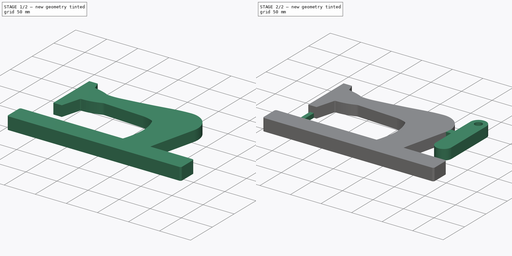
[diagram: build sequence overview — one tinted view per stage of 2, left to right]
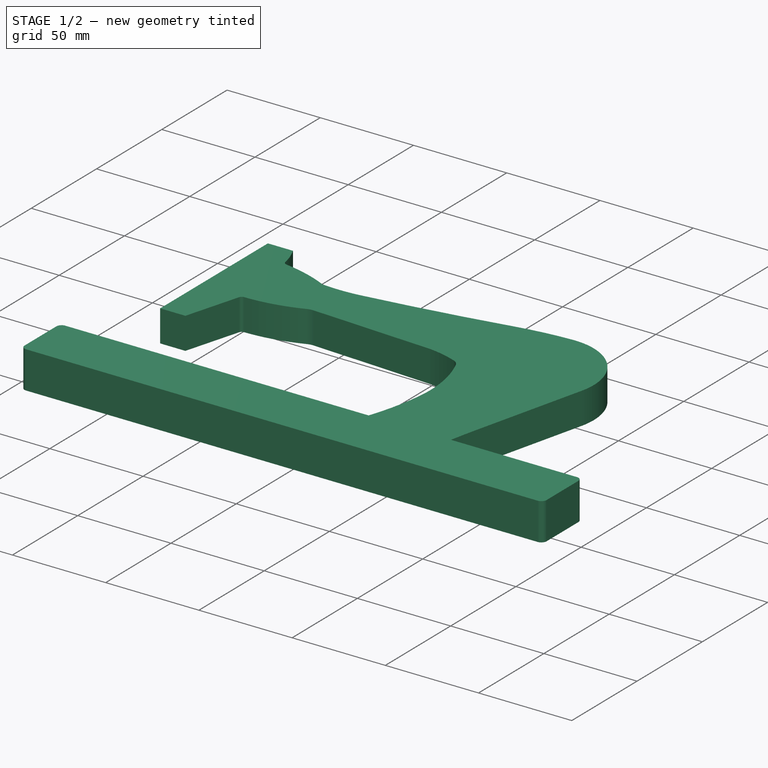
[diagram: stage 1 of 2 — iso view after this stage's code; geometry added in this stage tinted green]
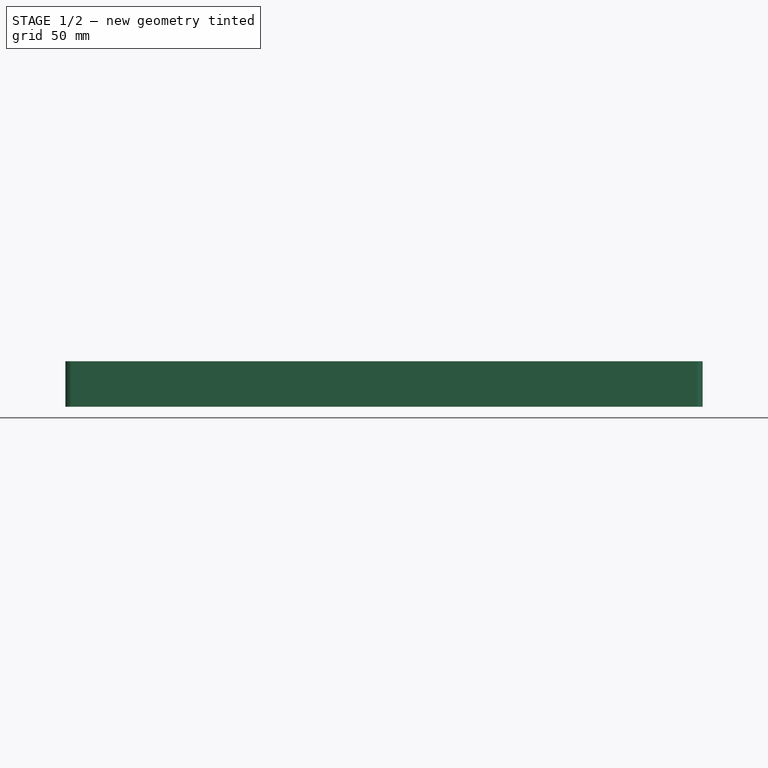
[diagram: stage 1 of 2 — front view after this stage's code; geometry added in this stage tinted green]
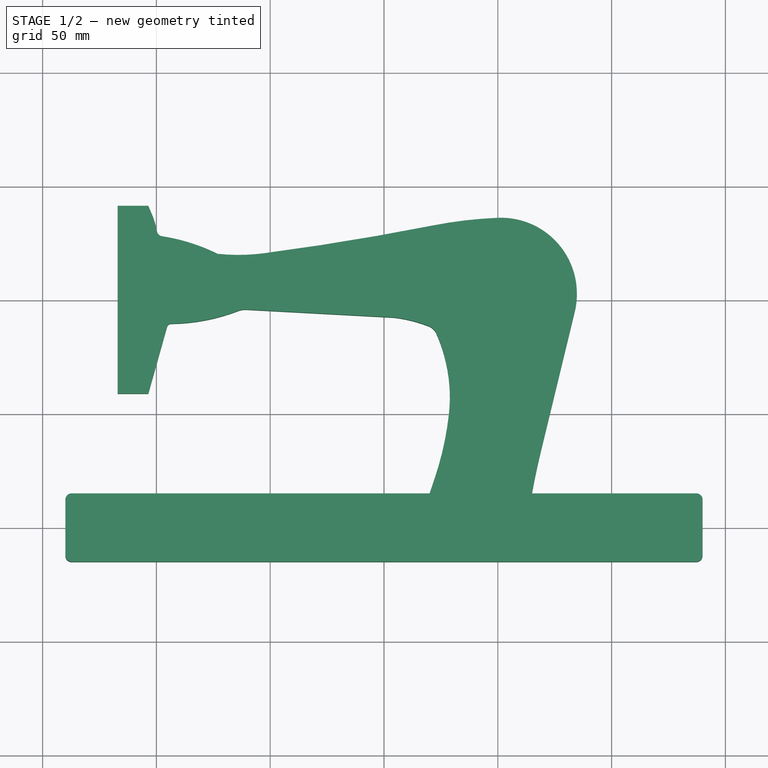
[diagram: stage 1 of 2 — top view after this stage's code; geometry added in this stage tinted green]
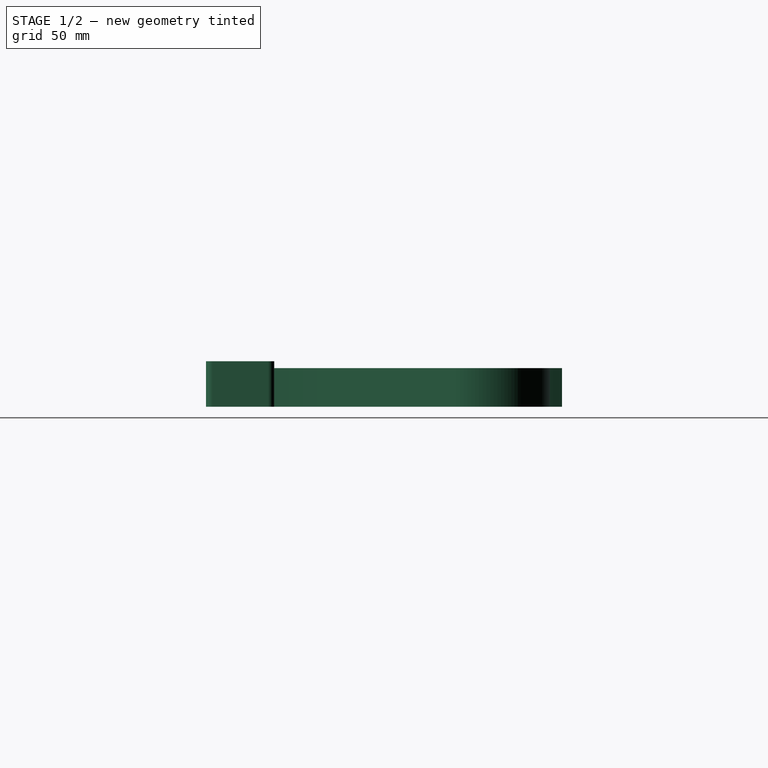
[diagram: stage 1 of 2 — right view after this stage's code; geometry added in this stage tinted green]
FCSTD DOCUMENT  (FreeCAD 0.19R24291 (Git))
Label: Nähmaschine_0v1
License: All rights reserved
LicenseURL: http://en.wikipedia.org/wiki/All_rights_reserved
objects: Sketcher::SketchObject×4, PartDesign::Pad×4, PartDesign::Body×1
note: 13 computed .brp shape members not serialized (recipe doc carries the construction recipe); baked Part::Feature solids carry a one-line shape summary decoded from their .brp

FEATURE [Sketcher::SketchObject] Sketch  label="Basis"
  FullyConstrained = true
  MapMode = 5
  Support = -> [XY_Plane]
  sketch-geometry (12):
    g0: LineSegment StartX=-137.2 StartY=15 StartZ=0 EndX=137.2 EndY=15 EndZ=0
    g1: LineSegment StartX=140 StartY=12.2 StartZ=0 EndX=140 EndY=-12.2 EndZ=0
    g2: LineSegment StartX=137.2 StartY=-15 StartZ=0 EndX=-137.2 EndY=-15 EndZ=0
    g3: LineSegment StartX=-140 StartY=-12.2 StartZ=0 EndX=-140 EndY=12.2 EndZ=0
    g4: ArcOfCircle CenterX=-137.2 CenterY=12.2 CenterZ=0 NormalX=0 NormalY=0 NormalZ=1 AngleXU=0 Radius=2.8 StartAngle=1.5708 EndAngle=3.14159
    g5: GeomPoint X=-140 Y=15 Z=0
    g6: ArcOfCircle CenterX=-137.2 CenterY=-12.2 CenterZ=0 NormalX=0 NormalY=0 NormalZ=1 AngleXU=0 Radius=2.8 StartAngle=3.14159 EndAngle=4.71239
    g7: GeomPoint X=-140 Y=-15 Z=0
    g8: ArcOfCircle CenterX=137.2 CenterY=-12.2 CenterZ=0 NormalX=0 NormalY=0 NormalZ=1 AngleXU=0 Radius=2.8 StartAngle=4.71239 EndAngle=6.28319
    g9: GeomPoint X=140 Y=-15 Z=0
    g10: ArcOfCircle CenterX=137.2 CenterY=12.2 CenterZ=0 NormalX=0 NormalY=0 NormalZ=1 AngleXU=0 Radius=2.8 StartAngle=0 EndAngle=1.5708
    g11: GeomPoint X=140 Y=15 Z=0
  constraints (27):
    c: Horizontal(g2)
    c: Vertical(g1)
    c: Vertical(g3)
    c: Distance(g7,g5) = 30
    c: Distance(g-1,g3) = 140
    c: Distance(g-1,g2) = 15
    c: PointOnObject(g5,g0)
    c: PointOnObject(g5,g3)
    c: Tangent(g0,g4) = 1.5708
    c: Tangent(g3,g4) = 1.5708
    c: Radius(g4) = 2.8
    c: PointOnObject(g7,g2)
    c: PointOnObject(g7,g3)
    c: Tangent(g2,g6) = 1.5708
    c: Tangent(g3,g6) = 1.5708
    c: PointOnObject(g9,g1)
    c: PointOnObject(g9,g2)
    c: Tangent(g1,g8) = 1.5708
    c: Tangent(g2,g8) = 1.5708
    c: PointOnObject(g11,g0)
    c: PointOnObject(g11,g1)
    c: Tangent(g0,g10) = 1.5708
    c: Tangent(g1,g10) = 1.5708
    c: Equal(g6,g8)
    c: Equal(g8,g10)
    c: Equal(g10,g4)
    c: Symmetric(g0,g0,g-2)
FEATURE [PartDesign::Pad] Pad  label="Basis_pad"
  Direction = (1,1,1)
  Length = 20
  Length2 = 100
  Profile = -> Sketch
  Refine = true
  Type = 0
FEATURE [Sketcher::SketchObject] Sketch001  label="Nähmaschine"
  FullyConstrained = true
  MapMode = 5
  Support = -> [XY_Plane]
  sketch-geometry (24):
    g0: LineSegment StartX=20 StartY=15 StartZ=0 EndX=22.1 EndY=21.1514 EndZ=0
    g1: ArcOfCircle CenterX=-105.66 CenterY=64.7668 CenterZ=0 NormalX=0 NormalY=0 NormalZ=1 AngleXU=0 Radius=135 StartAngle=5.95421 EndAngle=6.17204
    g2: ArcOfCircle CenterX=-39.8688 CenterY=57.4244 CenterZ=0 NormalX=0 NormalY=0 NormalZ=1 AngleXU=0 Radius=68.8 StartAngle=6.17204 EndAngle=6.70146
    g3: ArcOfCircle CenterX=17.4625 CenterY=82.9085 CenterZ=0 NormalX=0 NormalY=0 NormalZ=1 AngleXU=0 Radius=6.06 StartAngle=0.418276 EndAngle=1.19865
    g4: ArcOfCircle CenterX=-2.95074 CenterY=30.6113 CenterZ=0 NormalX=0 NormalY=0 NormalZ=1 AngleXU=0 Radius=62.2 StartAngle=1.19865 EndAngle=1.44996
    g5: LineSegment StartX=4.54717 StartY=92.3577 StartZ=0 EndX=-60.3589 EndY=95.85 EndZ=0
    g6: LineSegment StartX=-95.3071 StartY=88.2712 StartZ=0 EndX=-103.55 EndY=58.933 EndZ=0
    g7: LineSegment StartX=-103.55 StartY=58.933 StartZ=0 EndX=-117.05 EndY=58.933 EndZ=0
    g8: LineSegment StartX=-117.05 StartY=58.933 StartZ=0 EndX=-117.05 EndY=141.429 EndZ=0
    g9: LineSegment StartX=-117.05 StartY=141.429 StartZ=0 EndX=-103.55 EndY=141.429 EndZ=0
    g10: ArcOfCircle CenterX=-63.9702 CenterY=207.129 CenterZ=0 NormalX=0 NormalY=0 NormalZ=1 AngleXU=0 Radius=87.3 StartAngle=4.60826 EndAngle=4.84423
    g11: ArcOfCircle CenterX=-209.455 CenterY=1304.22 CenterZ=0 NormalX=0 NormalY=0 NormalZ=1 AngleXU=0 Radius=1194 StartAngle=4.84423 EndAngle=4.90697
    g12: ArcOfCircle CenterX=57.4695 CenterY=-50.2141 CenterZ=0 NormalX=0 NormalY=0 NormalZ=1 AngleXU=0 Radius=186.49 StartAngle=1.61036 EndAngle=1.76538
    g13: ArcOfCircle CenterX=51.4114 CenterY=102.826 CenterZ=0 NormalX=0 NormalY=0 NormalZ=1 AngleXU=0 Radius=33.33 StartAngle=6.04534 EndAngle=7.89355
    g14: LineSegment StartX=83.8031 StartY=94.9733 StartZ=0 EndX=68.9493 EndY=33.703 EndZ=0
    g15: ArcOfCircle CenterX=381.301 CenterY=-42.0207 CenterZ=0 NormalX=0 NormalY=0 NormalZ=1 AngleXU=0 Radius=321.399 StartAngle=2.90375 EndAngle=2.96323
    g16: LineSegment StartX=65 StartY=15 StartZ=0 EndX=20 EndY=15 EndZ=0
    g17: ArcOfCircle CenterX=-60.8489 CenterY=86.7432 CenterZ=0 NormalX=0 NormalY=0 NormalZ=1 AngleXU=0 Radius=9.12 StartAngle=1.51704 EndAngle=1.93678
    g18: ArcOfCircle CenterX=-94.5318 CenterY=174.63 CenterZ=0 NormalX=0 NormalY=0 NormalZ=1 AngleXU=0 Radius=85 StartAngle=4.72358 EndAngle=5.07838
    g19: ArcOfCircle CenterX=-93.5607 CenterY=87.8351 CenterZ=0 NormalX=0 NormalY=0 NormalZ=1 AngleXU=0 Radius=1.8 StartAngle=1.58198 EndAngle=2.89691
    g20: LineSegment StartX=-103.55 StartY=141.429 StartZ=0 EndX=-101.963 EndY=137.695 EndZ=0
    g21: ArcOfCircle CenterX=-134.036 CenterY=124.064 CenterZ=0 NormalX=0 NormalY=0 NormalZ=1 AngleXU=0 Radius=34.85 StartAngle=0.177023 EndAngle=0.401887
    g22: ArcOfCircle CenterX=-97.1223 CenterY=130.667 CenterZ=0 NormalX=0 NormalY=0 NormalZ=1 AngleXU=0 Radius=2.65 StartAngle=3.31862 EndAngle=4.55885
    g23: ArcOfCircle CenterX=-110.42 CenterY=44.7401 CenterZ=0 NormalX=0 NormalY=0 NormalZ=1 AngleXU=0 Radius=84.3 StartAngle=1.11144 EndAngle=1.41726
  constraints (72):
    c: DistanceY(g-1,g0) = 15
    c: DistanceX(g-1,g0) = 20
    c: Tangent(g0,g1) = -1.5708
    c: Tangent(g1,g2) = -1.5708
    c: Tangent(g2,g3) = -1.5708
    c: Tangent(g3,g4) = -1.5708
    c: Coincident(g4,g5)
    c: Coincident(g6,g7)
    c: Horizontal(g7)
    c: Coincident(g7,g8)
    c: Vertical(g8)
    c: Coincident(g8,g9)
    c: Horizontal(g9)
    c: Tangent(g10,g11) = -1.5708
    c: Tangent(g11,g12) = 1.5708
    c: Tangent(g12,g13) = -1.5708
    c: Tangent(g13,g14) = 1.5708
    c: Tangent(g14,g15) = -1.5708
    c: Coincident(g16,g15)
    c: Coincident(g16,g0)
    c: DistanceY(g-1,g15) = 15
    c: DistanceX(g0,g15) = 45
    c: Distance(g0,g0) = 6.5
    c: DistanceX(g0,g0) = 2.1
    c: Radius(g1) = 135
    c: Distance(g1,g0) = 29.35
    c: Radius(g2) = 68.8
    c: Distance(g1,g2) = 36
    c: Radius(g3) = 6.06
    c: Distance(g2,g3) = 4.61
    c: Radius(g4) = 62.2
    c: Distance(g3,g4) = 15.59
    c: Distance(g4,g5) = 65
    c: Tangent(g5,g17) = -1.5708
    c: Tangent(g17,g18) = 1.5708
    c: Tangent(g18,g19) = 1.5708
    c: Coincident(g19,g6)
    c: Radius(g17) = 9.12
    c: Distance(g5,g17) = 3.8
    c: Radius(g18) = 85
    c: Distance(g17,g18) = 30
    c: DistanceY(g0,g5) = 80.85
    c: Radius(g19) = 1.8
    c: Distance(g18,g6) = 2.2
    c: DistanceX(g6) = -103.55
    c: DistanceY(g6) = 58.933
    c: DistanceY(g7,g8) = 82.4965
    c: DistanceX(g7,g6) = 13.5
    c: Equal(g7,g9)
    c: Coincident(g20,g9)
    c: Tangent(g20,g21) = 1.5708
    c: Tangent(g21,g22) = 1.5708
    c: Tangent(g22,g23) = 1.5708
    c: Coincident(g23,g10)
    c: DistanceX(g9,g20) = 1.5871
    c: DistanceY(g9,g20) = -3.73418
    c: Radius(g21) = 34.85
    c: Distance(g21,g20) = 7.82
    c: Radius(g22) = 2.65
    c: Distance(g22,g21) = 3.08
    c: Radius(g23) = 84.3
    c: Distance(g10,g22) = 25.68
    c: Radius(g10) = 87.3
    c: DistanceX(g10,g10) = 20.55
    c: Radius(g11) = 1194
    c: Distance(g10,g11) = 74.9
    c: DistanceY(g10) = 120.586
    c: Radius(g12) = 186.49
    c: Distance(g11,g12) = 28.88
    c: Radius(g13) = 33.33
    c: Distance(g13,g12) = 53.2
    c: DistanceX(g13,g14) = -14.8538
FEATURE [PartDesign::Pad] Pad001  label="nähmaschine_pad"
  BaseFeature = -> Pad
  Direction = (1,1,1)
  Length = 17
  Length2 = 100
  Profile = -> Sketch001
  Refine = true
  Type = 0
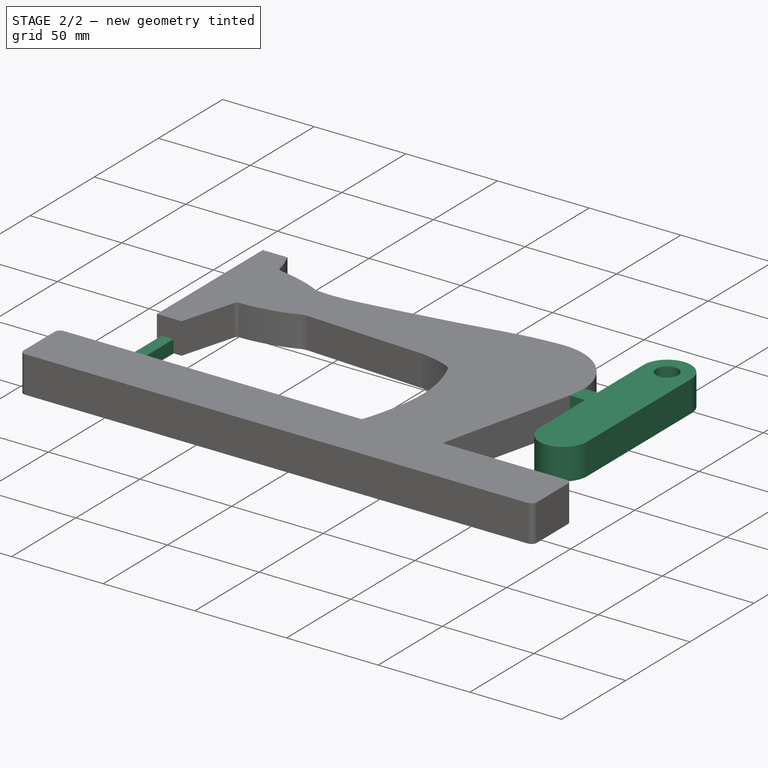
[diagram: stage 2 of 2 — iso view after this stage's code; geometry added in this stage tinted green]
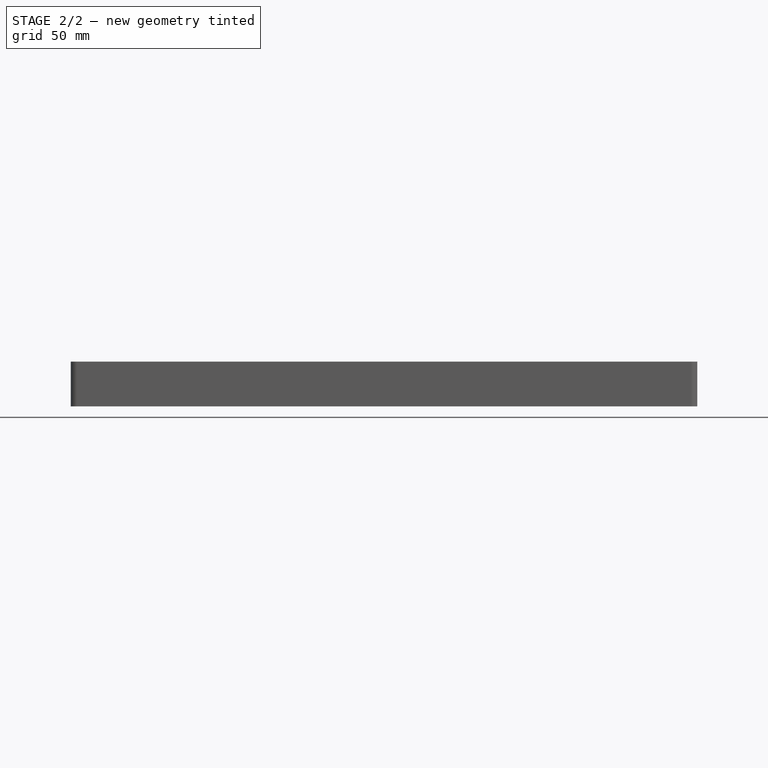
[diagram: stage 2 of 2 — front view after this stage's code; geometry added in this stage tinted green]
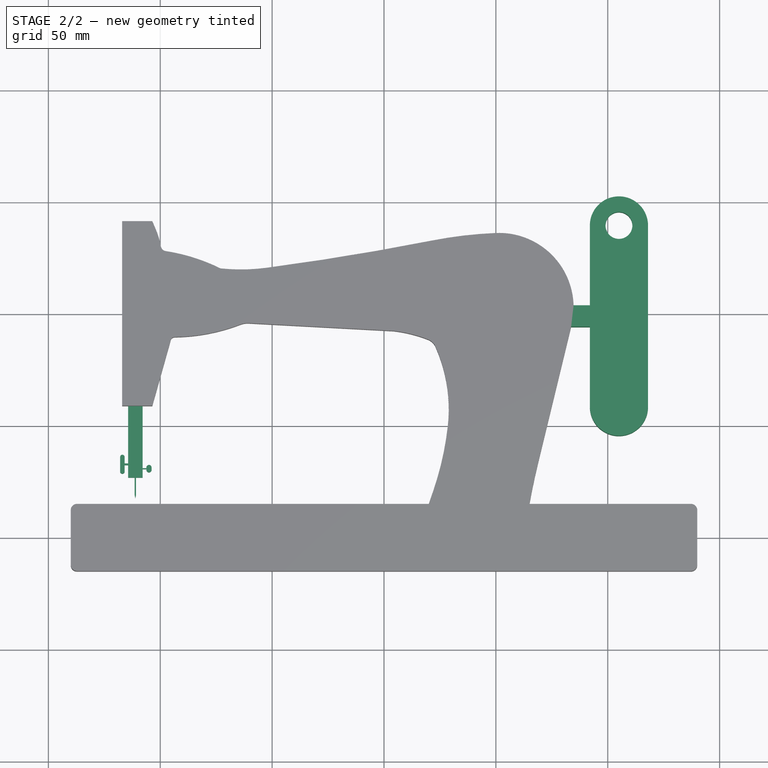
[diagram: stage 2 of 2 — top view after this stage's code; geometry added in this stage tinted green]
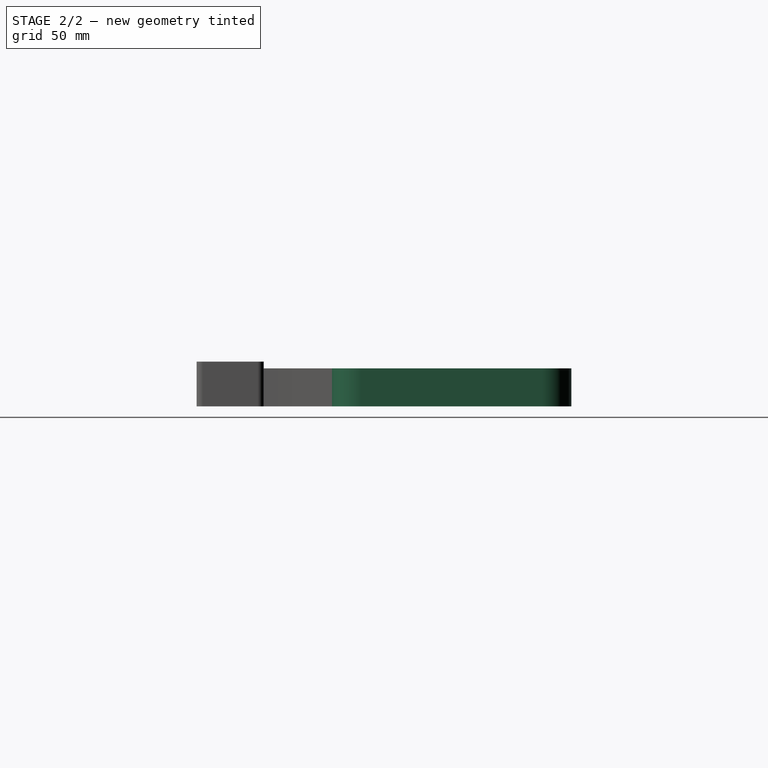
[diagram: stage 2 of 2 — right view after this stage's code; geometry added in this stage tinted green]
FEATURE [Sketcher::SketchObject] Sketch002  label="Nadel"
  FullyConstrained = true
  MapMode = 5
  Support = -> [XY_Plane]
  sketch-geometry (26):
    g0: LineSegment StartX=-114.376 StartY=58.9381 StartZ=0 EndX=-107.876 EndY=58.9381 EndZ=0
    g1: ArcOfCircle CenterX=-116.926 CenterY=36.1881 CenterZ=0 NormalX=0 NormalY=0 NormalZ=1 AngleXU=0 Radius=1 StartAngle=3.3e-15 EndAngle=3.14159
    g2: ArcOfCircle CenterX=-116.926 CenterY=29.6881 CenterZ=0 NormalX=0 NormalY=0 NormalZ=1 AngleXU=0 Radius=1 StartAngle=3.14159 EndAngle=6.28319
    g3: LineSegment StartX=-117.926 StartY=36.1881 StartZ=0 EndX=-117.926 EndY=29.6881 EndZ=0
    g4: ArcOfCircle CenterX=-105.026 CenterY=31.5131 CenterZ=0 NormalX=0 NormalY=0 NormalZ=1 AngleXU=0 Radius=1.15 StartAngle=-9e-16 EndAngle=3.14159
    g5: ArcOfCircle CenterX=-105.026 CenterY=30.4631 CenterZ=0 NormalX=0 NormalY=0 NormalZ=1 AngleXU=0 Radius=1.15 StartAngle=3.14159 EndAngle=6.28319
    g6: LineSegment StartX=-103.876 StartY=31.5131 StartZ=0 EndX=-103.876 EndY=30.4631 EndZ=0
    g7: LineSegment StartX=-115.926 StartY=33.3381 StartZ=0 EndX=-114.376 EndY=33.3381 EndZ=0
    g8: LineSegment StartX=-115.926 StartY=32.5381 StartZ=0 EndX=-114.376 EndY=32.5381 EndZ=0
    g9: LineSegment StartX=-115.926 StartY=36.1881 StartZ=0 EndX=-115.926 EndY=33.3381 EndZ=0
    g10: LineSegment StartX=-115.926 StartY=32.5381 StartZ=0 EndX=-115.926 EndY=29.6881 EndZ=0
    g11: LineSegment StartX=-114.376 StartY=58.9381 StartZ=0 EndX=-114.376 EndY=33.3381 EndZ=0
    g12: LineSegment StartX=-114.376 StartY=32.5381 StartZ=0 EndX=-114.376 EndY=26.9381 EndZ=0
    g13: LineSegment StartX=-106.176 StartY=31.1881 StartZ=0 EndX=-107.876 EndY=31.1881 EndZ=0
    g14: LineSegment StartX=-107.876 StartY=30.7881 StartZ=0 EndX=-106.176 EndY=30.7881 EndZ=0
    g15: LineSegment StartX=-106.176 StartY=31.1881 StartZ=0 EndX=-106.176 EndY=31.5131 EndZ=0
    g16: LineSegment StartX=-106.176 StartY=30.4631 StartZ=0 EndX=-106.176 EndY=30.7881 EndZ=0
    g17: LineSegment StartX=-107.876 StartY=26.9381 StartZ=0 EndX=-107.876 EndY=30.7881 EndZ=0
    g18: LineSegment StartX=-107.876 StartY=31.1881 StartZ=0 EndX=-107.876 EndY=58.9381 EndZ=0
    g19: LineSegment StartX=-114.376 StartY=26.9381 StartZ=0 EndX=-107.876 EndY=26.9381 EndZ=0
    g20: LineSegment StartX=-114.376 StartY=26.9381 StartZ=0 EndX=-111.426 EndY=26.9381 EndZ=0
    g21: LineSegment StartX=-111.426 StartY=26.9381 StartZ=0 EndX=-111.426 EndY=19.1381 EndZ=0
    g22: LineSegment StartX=-111.426 StartY=19.1381 StartZ=0 EndX=-111.126 EndY=17.8218 EndZ=0
    g23: LineSegment StartX=-111.126 StartY=17.8218 StartZ=0 EndX=-110.826 EndY=19.1381 EndZ=0
    g24: LineSegment StartX=-110.826 StartY=19.1381 StartZ=0 EndX=-110.826 EndY=26.9381 EndZ=0
    g25: LineSegment StartX=-110.826 StartY=26.9381 StartZ=0 EndX=-107.876 EndY=26.9381 EndZ=0
  constraints (75):
    c: Horizontal(g0)
    c: DistanceX(g0) = -107.876
    c: DistanceY(g0) = 58.9381
    c: DistanceY(g17,g0) = 32
    c: DistanceX(g12,g17) = 6.5
    c: Tangent(g1,g3) = -1.5708
    c: Tangent(g3,g2) = -1.5708
    c: Vertical(g3)
    c: Equal(g1,g2)
    c: Tangent(g4,g6) = 1.5708
    c: Tangent(g6,g5) = 1.5708
    c: Equal(g4,g5)
    c: DistanceY(g2,g1) = 6.5
    c: Radius(g2) = 1
    c: DistanceX(g2,g12) = 1.55
    c: DistanceY(g12,g2) = 2.75
    c: Horizontal(g7)
    c: Horizontal(g8)
    c: Coincident(g9,g1)
    c: Coincident(g9,g7)
    c: Vertical(g9)
    c: Coincident(g10,g8)
    c: Coincident(g10,g2)
    c: Vertical(g10)
    c: Coincident(g11,g0)
    c: Coincident(g11,g7)
    c: Vertical(g11)
    c: Coincident(g12,g8)
    c: Vertical(g12)
    c: Equal(g9,g10)
    c: Equal(g7,g8)
    c: DistanceY(g12,g2) = 2.75
    c: DistanceY(g10,g10) = 2.85
    c: DistanceY(g2,g1) = 6.5
    c: DistanceY(g5,g4) = 1.05
    c: Radius(g5) = 1.15
    c: Horizontal(g13)
    c: Horizontal(g14)
    c: Coincident(g15,g13)
    c: Vertical(g15)
    c: Coincident(g16,g14)
    c: Vertical(g16)
    c: Equal(g16,g15)
    c: Tangent(g15,g4) = 1.5708
    c: Tangent(g16,g5) = 1.5708
    c: Equal(g14,g13)
    c: DistanceX(g14,g14) = 1.7
    c: DistanceY(g14,g13) = 0.4
    c: Vertical(g17)
    c: Coincident(g18,g13)
    c: Coincident(g18,g0)
    c: Vertical(g18)
    c: DistanceY(g17,g17) = 3.85
    c: Coincident(g17,g14)
    c: Coincident(g19,g12)
    c: Coincident(g19,g17)
    c: Horizontal(g19)
    c: Equal(g19,g0)
    c: Coincident(g12,g20)
    c: PointOnObject(g20,g19)
    c: Coincident(g20,g21)
    c: Vertical(g21)
    c: Coincident(g21,g22)
    c: Coincident(g22,g23)
    c: Coincident(g23,g24)
    c: PointOnObject(g24,g19)
    c: Vertical(g24)
    c: Coincident(g24,g25)
    c: Coincident(g25,g17)
    c: Equal(g25,g20)
    c: Equal(g24,g21)
    c: Equal(g23,g22)
    c: Distance(g23) = 1.35
    c: DistanceX(g21,g23) = 0.6
    c: DistanceY(g23,g24) = 7.8
FEATURE [PartDesign::Pad] Pad002  label="Nadel_pad"
  BaseFeature = -> Pad001
  Direction = (1,1,1)
  Length = 7
  Length2 = 100
  Profile = -> Sketch002
  Refine = true
  Type = 0
FEATURE [Sketcher::SketchObject] Sketch003  label="rad"
  FullyConstrained = true
  MapMode = 5
  Support = -> [XY_Plane]
  sketch-geometry (11):
    g0: ArcOfCircle CenterX=105 CenterY=139.5 CenterZ=0 NormalX=0 NormalY=0 NormalZ=1 AngleXU=0 Radius=13 StartAngle=-9e-16 EndAngle=3.14159
    g1: ArcOfCircle CenterX=105 CenterY=58.5 CenterZ=0 NormalX=0 NormalY=0 NormalZ=1 AngleXU=0 Radius=13 StartAngle=3.14159 EndAngle=6.28319
    g2: LineSegment StartX=118 StartY=139.5 StartZ=0 EndX=118 EndY=58.5 EndZ=0
    g3: LineSegment StartX=92 StartY=139.5 StartZ=0 EndX=92 EndY=103.8 EndZ=0
    g4: LineSegment StartX=92 StartY=58.5 StartZ=0 EndX=92 EndY=94.2 EndZ=0
    g5: LineSegment StartX=92 StartY=139.5 StartZ=0 EndX=118 EndY=139.5 EndZ=0
    g6: LineSegment StartX=92 StartY=58.5 StartZ=0 EndX=118 EndY=58.5 EndZ=0
    g7: LineSegment StartX=92 StartY=94.2 StartZ=0 EndX=83.55 EndY=94.2 EndZ=0
    g8: LineSegment StartX=83.55 StartY=94.2 StartZ=0 EndX=83.55 EndY=103.8 EndZ=0
    g9: LineSegment StartX=83.55 StartY=103.8 StartZ=0 EndX=92 EndY=103.8 EndZ=0
    g10: Circle CenterX=105 CenterY=139.5 CenterZ=0 NormalX=0 NormalY=0 NormalZ=1 AngleXU=0 Radius=6
  constraints (30):
    c: Tangent(g0,g2) = 1.5708
    c: Tangent(g2,g1) = 1.5708
    c: Equal(g0,g1)
    c: DistanceY(g1,g0) = 81
    c: Radius(g0) = 13
    c: DistanceX(g-1,g1) = 105
    c: DistanceY(g-1,g1) = 58.5
    c: Coincident(g3,g0)
    c: Vertical(g3)
    c: Coincident(g4,g1)
    c: Vertical(g4)
    c: Equal(g3,g4)
    c: Coincident(g5,g0)
    c: Coincident(g5,g0)
    c: Coincident(g6,g1)
    c: Coincident(g6,g1)
    c: Equal(g6,g5)
    c: Horizontal(g5)
    c: Vertical(g2)
    c: Coincident(g4,g7)
    c: Horizontal(g7)
    c: Coincident(g7,g8)
    c: Vertical(g8)
    c: Coincident(g8,g9)
    c: Coincident(g9,g3)
    c: Horizontal(g9)
    c: DistanceY(g4,g4) = 35.7
    c: DistanceX(g9,g9) = 8.45
    c: Coincident(g10,g0)
    c: Radius(g10) = 6
FEATURE [PartDesign::Pad] Pad003  label="Rad_pad"
  BaseFeature = -> Pad002
  Direction = (1,1,1)
  Length = 17
  Length2 = 100
  Profile = -> Sketch003
  Refine = true
  Type = 0
FEATURE [PartDesign::Body] Body  label="Nähmaschine Boden"
  Group = -> [Sketch,Pad,Sketch001,Pad001,Sketch002,Pad002,Sketch003,Pad003]
  Origin = -> Origin
  Tip = -> Pad003
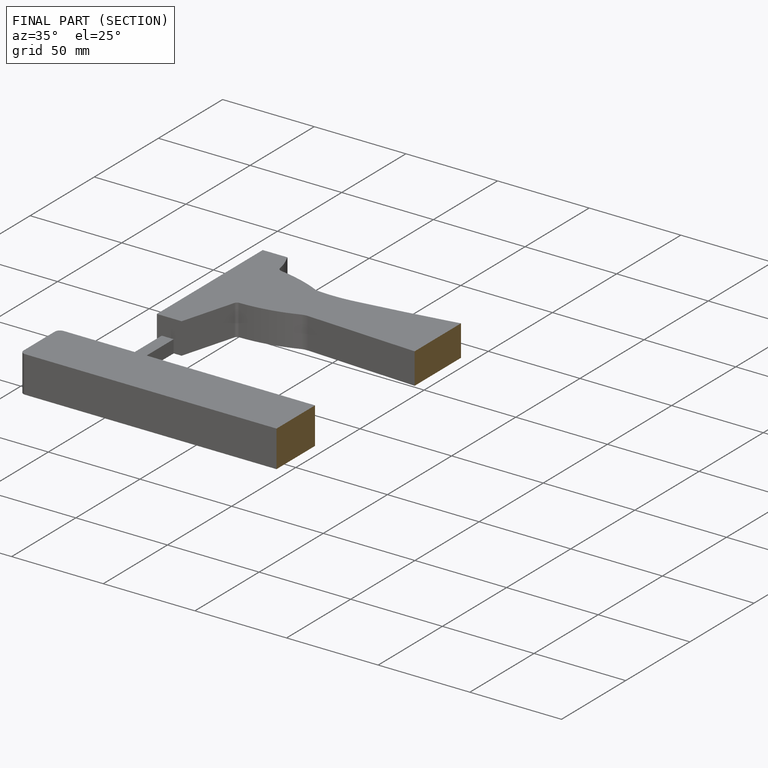
[diagram: finished part — half-section view (interior)]
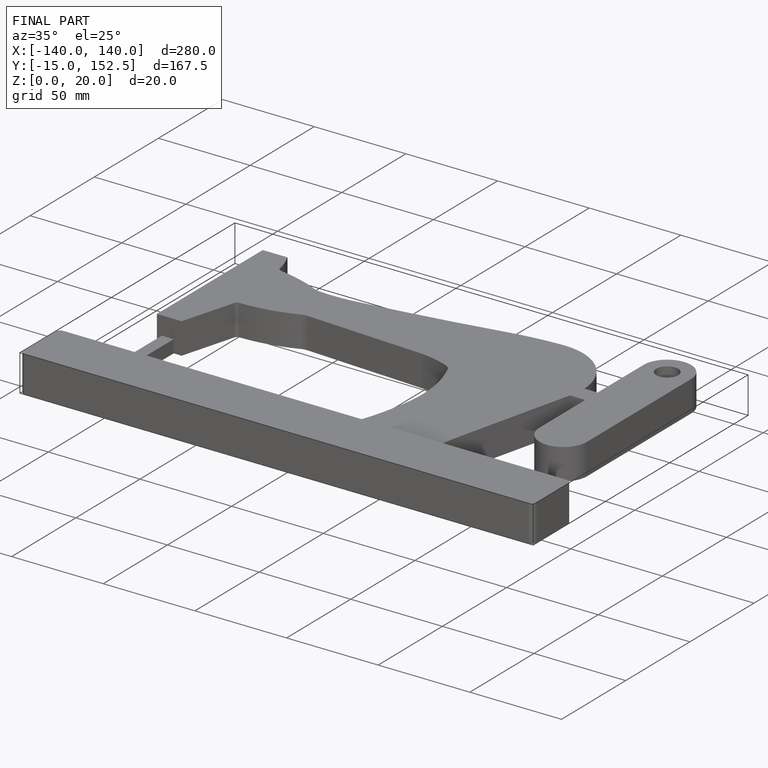
[diagram: finished part — iso view with bounding-box wireframe]
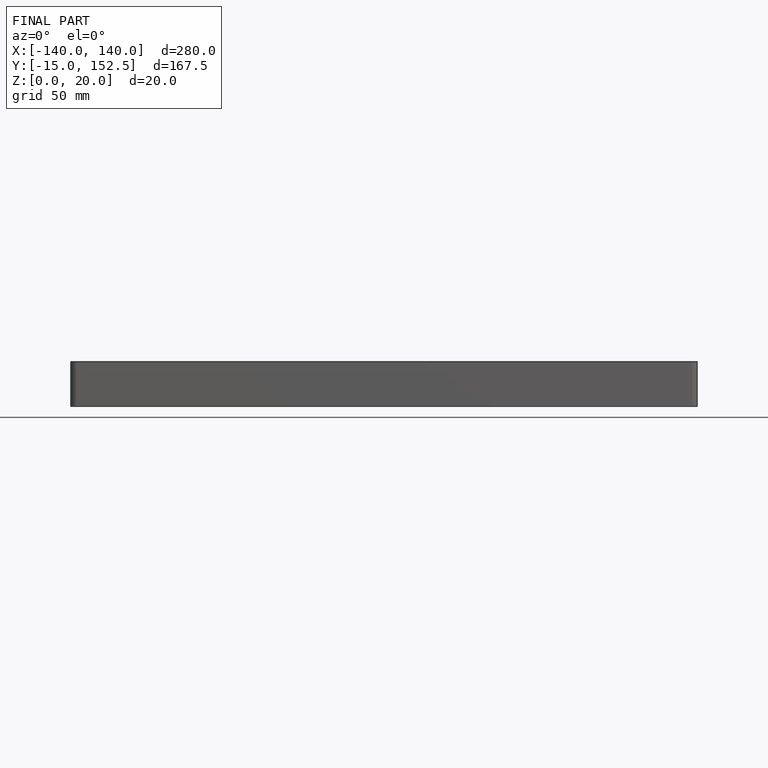
[diagram: finished part — front view with bounding-box wireframe]
